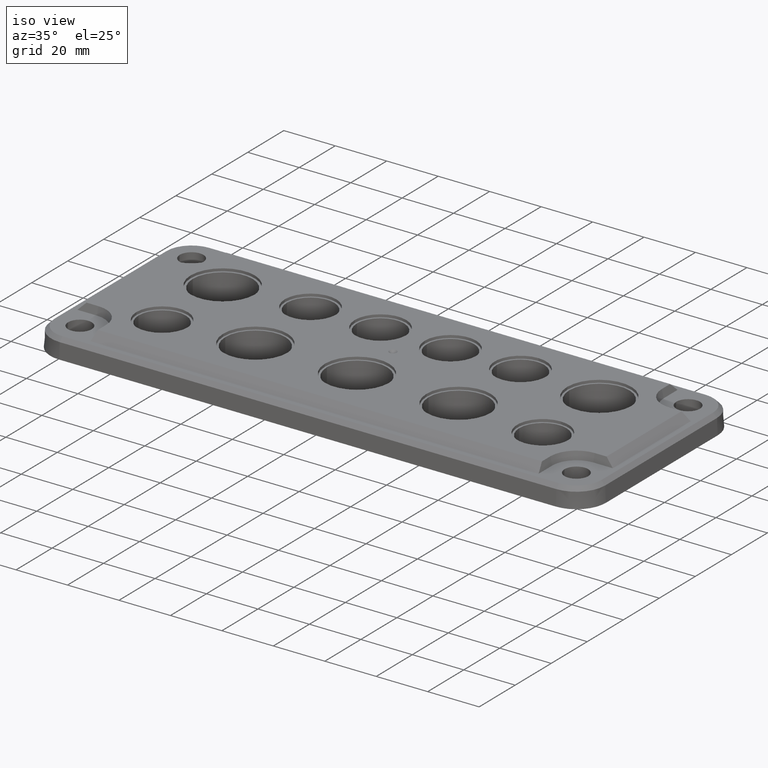
[diagram: clean part render]
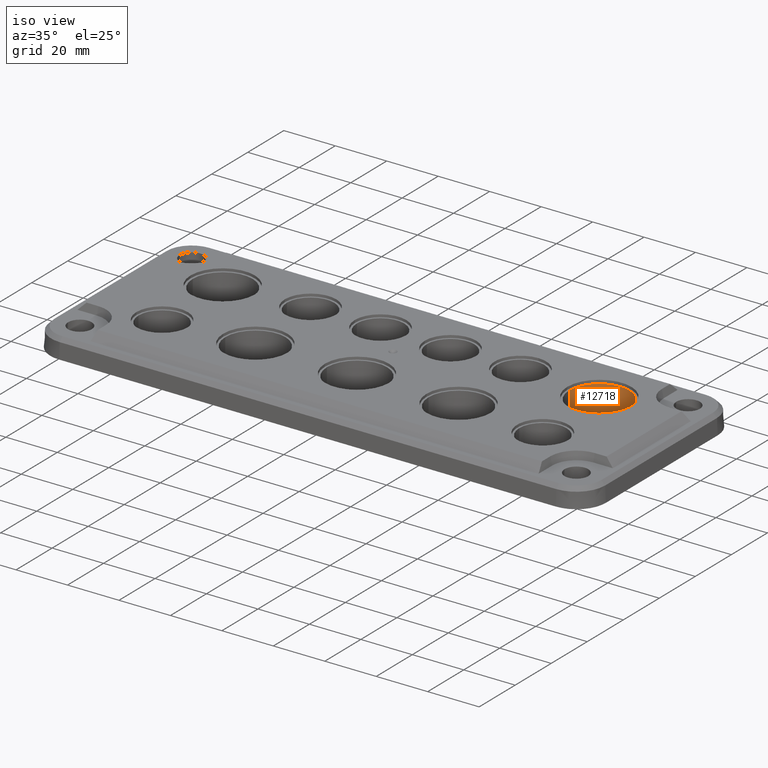
[diagram: same view with one face highlighted and labeled with its STEP entity id]
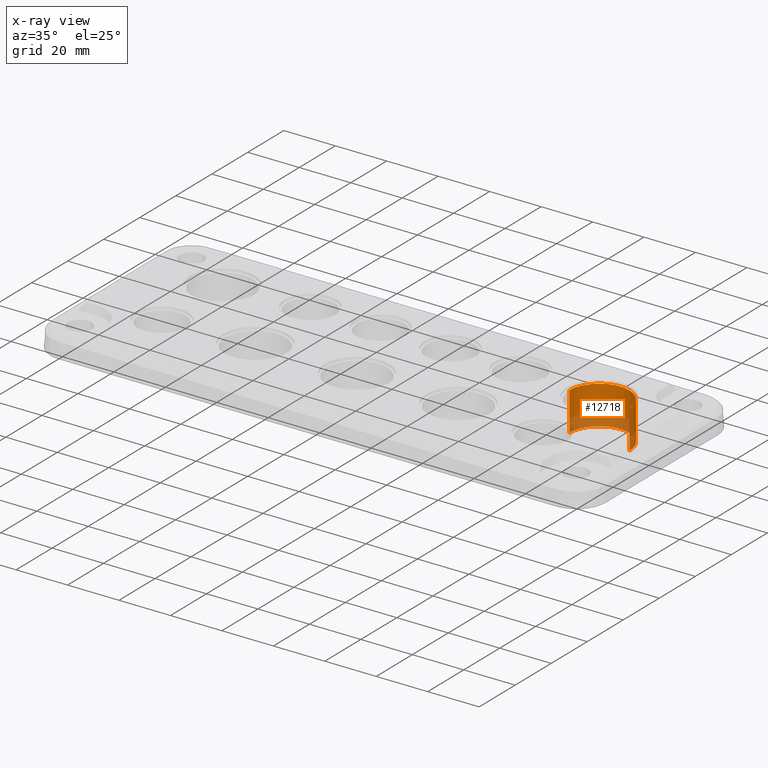
[diagram: x-ray of the same camera — body ghosted, the highlighted face saturated]
A machine part, iso view. The second image highlights one B-rep face of the part: STEP entity #12718.
The next image is the same camera in x-ray: the body ghosted, the highlighted face saturated — about 32% of this face is hidden behind the body in this view.
In plain terms, the highlighted cylindrical surface (partial cylindrical patch) has radius 11.688 mm, axis along (0, 0, -1).
Its self-contained STEP definition (entity closure, byte-faithful):
#65 = CARTESIAN_POINT ( 'NONE',  ( 295.7964390995756500, 158.1637859071908600, -5.500000000000000000 ) ) ;
#187 = CARTESIAN_POINT ( 'NONE',  ( 296.3616008050320300, 156.1210433375711900, -5.499999999999999100 ) ) ;
#396 = CARTESIAN_POINT ( 'NONE',  ( 275.1318744914094600, 160.5165856533336100, -5.500000000000001800 ) ) ;
#456 = CARTESIAN_POINT ( 'NONE',  ( 277.7897944119088200, 163.3796821272220500, -5.500000000000001800 ) ) ;
#515 = CARTESIAN_POINT ( 'NONE',  ( 280.6466042576354900, 164.9401733175892300, -5.500000000000000900 ) ) ;
#577 = CARTESIAN_POINT ( 'NONE',  ( 275.4784661191523600, 161.0136382612275800, -5.500000000000000000 ) ) ;
#704 = ORIENTED_EDGE ( 'NONE', *, *, #14976, .F. ) ;
#1123 = CARTESIAN_POINT ( 'NONE',  ( 287.1503089167737200, 165.4999018445356900, -5.500000000000000000 ) ) ;
#1184 = CARTESIAN_POINT ( 'NONE',  ( 283.3505083241935800, 165.6306798269132200, -5.500000000000000000 ) ) ;
#1462 = CARTESIAN_POINT ( 'NONE',  ( 295.5827235982669100, 158.7075656275619600, -5.500000000000000000 ) ) ;
#1490 = EDGE_CURVE ( 'NONE', #6871, #6144, #3678, .T. ) ;
#1693 = CARTESIAN_POINT ( 'NONE',  ( 296.2846124600797000, 156.5375328542177400, -5.500000000000000900 ) ) ;
#1718 = CARTESIAN_POINT ( 'NONE',  ( 280.8679983533009500, 165.0238211314650700, -5.500000000000000000 ) ) ;
#1782 = CARTESIAN_POINT ( 'NONE',  ( 274.1244439275017200, 158.6599318644763100, -5.500000000000001800 ) ) ;
#1843 = CARTESIAN_POINT ( 'NONE',  ( 273.3853914384921500, 156.2580967653100600, -5.500000000000000900 ) ) ;
#1926 = CARTESIAN_POINT ( 'NONE',  ( 294.7504673803328500, 160.2680357400299700, -5.500000000000000000 ) ) ;
#2211 = DIRECTION ( 'NONE',  ( 0.0000000000000000000, 0.0000000000000000000, -1.000000000000000000 ) ) ;
#3308 = CARTESIAN_POINT ( 'NONE',  ( 289.4824073426988200, 164.7744103615316600, -5.500000000000000000 ) ) ;
#3343 = CARTESIAN_POINT ( 'NONE',  ( 274.5641990822993000, 159.5940293715609100, -5.500000000000000000 ) ) ;
#3400 = CYLINDRICAL_SURFACE ( 'NONE', #9974, 11.68799999999997600 ) ;
#3678 = B_SPLINE_CURVE_WITH_KNOTS ( 'NONE', 3,
 ( #4394, #5720, #7038, #14029, #16651, #8401, #6922, #187, #15406, #1693, #7147, #7091, #16532, #65, #8520, #9681, #1462, #12975, #10226, #14092, #1926, #5829, #11533, #4563, #15584, #5891, #8637, #12844, #10102, #15462, #7208, #7384, #15639, #3308, #16991, #9984, #13443, #10922, #9527, #8019, #16215, #1123, #12172, #12115, #5254, #17630, #5318, #6710, #9409, #1184, #4479, #11514, #8729, #14123, #11568, #7181, #6039, #15670, #1718, #5864, #515, #16797, #15492, #17028, #9955, #8783, #4536, #5926, #456, #7243, #16856, #8608, #577, #15559, #14359, #396, #6108, #3343, #10021, #1782, #12764, #7297, #14178, #10199, #16915, #7359, #4712, #10078, #1843, #5984, #8550, #10135, #11452, #12820 ),
 .UNSPECIFIED., .F., .F.,
 ( 4, 1, 1, 1, 1, 2, 2, 1, 1, 1, 2, 2, 1, 1, 2, 2, 2, 1, 1, 2, 2, 1, 1, 1, 2, 2, 1, 1, 1, 1, 2, 2, 2, 1, 1, 1, 1, 2, 2, 1, 1, 1, 2, 2, 1, 1, 2, 2, 2, 1, 1, 2, 2, 1, 1, 1, 2, 2, 1, 1, 1, 1, 2, 2, 4 ),
 ( 0.0000000000000000000, 0.03125000000005130600, 0.04687500000007718100, 0.05468750000009012200, 0.05859375000009658900, 0.06054687500009982300, 0.06250000000010305600, 0.09375000000012655200, 0.1093750000001400400, 0.1171875000001478800, 0.1210937500001510000, 0.1250000000001541300, 0.1562500000001791100, 0.1718750000001926000, 0.1796875000002004500, 0.1875000000002083100, 0.2500000000002615100, 0.2812500000002904300, 0.2968750000003032000, 0.3046875000003119700, 0.3125000000003207400, 0.3437500000003448400, 0.3593750000003553800, 0.3671875000003622100, 0.3710937500003656000, 0.3750000000003690400, 0.4062500000004014600, 0.4218750000004176700, 0.4296875000004254900, 0.4335937500004272100, 0.4355468750004258300, 0.4375000000004243800, 0.5000000000004293200, 0.5312500000004318800, 0.5468750000004332100, 0.5546875000004362100, 0.5585937500004402000, 0.5605468750004422000, 0.5625000000004442000, 0.5937500000004136700, 0.6093750000003984600, 0.6171875000003909100, 0.6210937500003874700, 0.6250000000003839200, 0.6562500000003387300, 0.6718750000003175200, 0.6796875000003074200, 0.6875000000002974300, 0.7500000000002302600, 0.7812500000001958400, 0.7968750000001786300, 0.8046875000001679800, 0.8125000000001572100, 0.8437500000001155700, 0.8593750000000957000, 0.8671875000000858200, 0.8710937500000800500, 0.8750000000000741600, 0.9062500000000374100, 0.9218750000000207600, 0.9296875000000128800, 0.9335937500000105500, 0.9355468750000089900, 0.9375000000000074400, 1.000000000000000000 ),
 .UNSPECIFIED. ) ;
#4394 = CARTESIAN_POINT ( 'NONE',  ( 296.5486648836394500, 154.0381894054246700, -5.500000000000000000 ) ) ;
#4397 = CARTESIAN_POINT ( 'NONE',  ( 296.5486648836394500, 154.0381894054246500, 10.50000000000000000 ) ) ;
#4479 = CARTESIAN_POINT ( 'NONE',  ( 283.0418874882428200, 165.5844299622261000, -5.500000000000000000 ) ) ;
#4536 = CARTESIAN_POINT ( 'NONE',  ( 278.6308185490464100, 163.9279919021388100, -5.499999999999998200 ) ) ;
#4563 = CARTESIAN_POINT ( 'NONE',  ( 293.6956061769540700, 161.7325236801922300, -5.500000000000000900 ) ) ;
#4604 = ORIENTED_EDGE ( 'NONE', *, *, #15728, .F. ) ;
#4712 = CARTESIAN_POINT ( 'NONE',  ( 273.4320397132722700, 156.4901294254021300, -5.500000000000000000 ) ) ;
#5108 = DIRECTION ( 'NONE',  ( 0.0000000000000000000, 0.0000000000000000000, -1.000000000000000000 ) ) ;
#5254 = CARTESIAN_POINT ( 'NONE',  ( 287.0094055255495400, 165.5269984228819700, -5.500000000000000900 ) ) ;
#5318 = CARTESIAN_POINT ( 'NONE',  ( 285.5752073335907500, 165.7261569832275000, -5.499999999999999100 ) ) ;
#5676 = CARTESIAN_POINT ( 'NONE',  ( 273.1726648836395300, 154.0381894054246500, 10.50000000000000000 ) ) ;
#5720 = CARTESIAN_POINT ( 'NONE',  ( 296.5486324375884800, 154.3957236339630900, -5.500000000000000900 ) ) ;
#5829 = CARTESIAN_POINT ( 'NONE',  ( 294.6986322703891100, 160.3495916437696800, -5.500000000000000000 ) ) ;
#5864 = CARTESIAN_POINT ( 'NONE',  ( 280.7350683819271400, 164.9739636213671200, -5.499999999999998200 ) ) ;
#5891 = CARTESIAN_POINT ( 'NONE',  ( 292.3927268040746400, 162.9916594592831400, -5.500000000000000000 ) ) ;
#5926 = CARTESIAN_POINT ( 'NONE',  ( 278.5492626453445300, 163.8761567922140300, -5.500000000000000000 ) ) ;
#5980 = VERTEX_POINT ( 'NONE', #9317 ) ;
#5984 = CARTESIAN_POINT ( 'NONE',  ( 273.3764883793698500, 156.2115653720329400, -5.500000000000000000 ) ) ;
#6039 = CARTESIAN_POINT ( 'NONE',  ( 281.8099636148047000, 165.3322543692745200, -5.500000000000000900 ) ) ;
#6108 = CARTESIAN_POINT ( 'NONE',  ( 274.8618087769417000, 160.1035424016167500, -5.499999999999999100 ) ) ;
#6144 = VERTEX_POINT ( 'NONE', #9801 ) ;
#6260 = CARTESIAN_POINT ( 'NONE',  ( 284.8606648836394600, 154.0381894054246500, 9.500000000000000000 ) ) ;
#6495 = EDGE_LOOP ( 'NONE', ( #704, #4604, #17211, #8730 ) ) ;
#6706 = CARTESIAN_POINT ( 'NONE',  ( 296.5486648836394500, 154.0381894054246700, -5.500000000000000000 ) ) ;
#6710 = CARTESIAN_POINT ( 'NONE',  ( 284.5033936586638700, 165.7262056165232000, -5.500000000000000900 ) ) ;
#6871 = VERTEX_POINT ( 'NONE', #6706 ) ;
#6922 = CARTESIAN_POINT ( 'NONE',  ( 296.3694732169173000, 156.0770951236573000, -5.499999999999999100 ) ) ;
#7038 = CARTESIAN_POINT ( 'NONE',  ( 296.5242172463067000, 154.9297223249411100, -5.500000000000000000 ) ) ;
#7091 = CARTESIAN_POINT ( 'NONE',  ( 295.9568351809083400, 157.7190495081552500, -5.499999999999999100 ) ) ;
#7147 = CARTESIAN_POINT ( 'NONE',  ( 296.1547298474657200, 157.0888906744635000, -5.500000000000000000 ) ) ;
#7181 = CARTESIAN_POINT ( 'NONE',  ( 282.3613214349630300, 165.4621369818783300, -5.500000000000000900 ) ) ;
#7197 = LINE ( 'NONE', #5676, #13665 ) ;
#7208 = CARTESIAN_POINT ( 'NONE',  ( 290.9260178798416500, 164.0370455120822200, -5.500000000000000900 ) ) ;
#7243 = CARTESIAN_POINT ( 'NONE',  ( 277.1663306088306600, 162.8731306987809000, -5.500000000000000900 ) ) ;
#7297 = CARTESIAN_POINT ( 'NONE',  ( 274.0299419756810300, 158.4321853863743600, -5.500000000000000000 ) ) ;
#7359 = CARTESIAN_POINT ( 'NONE',  ( 273.5039939362778800, 156.8130297305658300, -5.500000000000000000 ) ) ;
#7384 = CARTESIAN_POINT ( 'NONE',  ( 290.4165048497935100, 164.3346552066942900, -5.500000000000000000 ) ) ;
#8019 = CARTESIAN_POINT ( 'NONE',  ( 287.6355052090089000, 165.3948603527415700, -5.499999999999999100 ) ) ;
#8401 = CARTESIAN_POINT ( 'NONE',  ( 296.3810914712904600, 156.0111548133189400, -5.500000000000000900 ) ) ;
#8520 = CARTESIAN_POINT ( 'NONE',  ( 295.7626487958007700, 158.2522500314570100, -5.500000000000000000 ) ) ;
#8534 = FACE_OUTER_BOUND ( 'NONE', #6495, .T. ) ;
#8550 = CARTESIAN_POINT ( 'NONE',  ( 273.3718548514905300, 156.1869245654564500, -5.499999999999997300 ) ) ;
#8608 = CARTESIAN_POINT ( 'NONE',  ( 275.9071948298172300, 161.5702513258232500, -5.500000000000000000 ) ) ;
#8637 = CARTESIAN_POINT ( 'NONE',  ( 291.8361137394697400, 163.4203881699391700, -5.500000000000000000 ) ) ;
#8729 = CARTESIAN_POINT ( 'NONE',  ( 282.8218223479034400, 165.5470094278224700, -5.499999999999999100 ) ) ;
#8730 = ORIENTED_EDGE ( 'NONE', *, *, #1490, .F. ) ;
#8783 = CARTESIAN_POINT ( 'NONE',  ( 278.7984631699612800, 164.0316671068728700, -5.499999999999999100 ) ) ;
#8925 = CARTESIAN_POINT ( 'NONE',  ( 284.8606648836394600, 154.0381894054246500, 10.50000000000000000 ) ) ;
#9006 = DIRECTION ( 'NONE',  ( -1.000000000000000000, 0.0000000000000000000, 0.0000000000000000000 ) ) ;
#9317 = CARTESIAN_POINT ( 'NONE',  ( 273.1726648836395300, 154.0381894054246500, 9.500000000000000000 ) ) ;
#9409 = CARTESIAN_POINT ( 'NONE',  ( 283.9695922203580400, 165.7018269181038200, -5.500000000000000000 ) ) ;
#9527 = CARTESIAN_POINT ( 'NONE',  ( 288.2745391447497800, 165.2278331647560500, -5.500000000000000000 ) ) ;
#9681 = CARTESIAN_POINT ( 'NONE',  ( 295.7461939149807800, 158.2945947136866200, -5.499999999999999100 ) ) ;
#9801 = CARTESIAN_POINT ( 'NONE',  ( 273.1726648836394700, 154.0381894054246700, -5.500000000000000000 ) ) ;
#9955 = CARTESIAN_POINT ( 'NONE',  ( 279.0516334592758200, 164.1838561571173300, -5.500000000000000000 ) ) ;
#9974 = AXIS2_PLACEMENT_3D ( 'NONE', #8925, #2211, #10334 ) ;
#9984 = CARTESIAN_POINT ( 'NONE',  ( 289.2546608645917000, 164.8689123133733900, -5.500000000000000900 ) ) ;
#10021 = CARTESIAN_POINT ( 'NONE',  ( 274.2633088066411900, 158.9753405291698100, -5.500000000000000000 ) ) ;
#10078 = CARTESIAN_POINT ( 'NONE',  ( 273.3989524445146300, 156.3278334384876300, -5.500000000000000000 ) ) ;
#10102 = CARTESIAN_POINT ( 'NONE',  ( 291.4245394328870000, 163.7095477139506300, -5.500000000000000000 ) ) ;
#10135 = CARTESIAN_POINT ( 'NONE',  ( 273.2377720926552900, 155.4625414519787200, -5.499999999999999100 ) ) ;
#10199 = CARTESIAN_POINT ( 'NONE',  ( 273.8538194144397800, 157.9882070259511400, -5.499999999999999100 ) ) ;
#10226 = CARTESIAN_POINT ( 'NONE',  ( 295.0063316352738500, 159.8472208298227900, -5.500000000000000000 ) ) ;
#10334 = DIRECTION ( 'NONE',  ( -1.000000000000000000, 0.0000000000000000000, 0.0000000000000000000 ) ) ;
#10659 = CIRCLE ( 'NONE', #16415, 11.68799999999997600 ) ;
#10922 = CARTESIAN_POINT ( 'NONE',  ( 288.8106825043397500, 165.0450348745905300, -5.499999999999999100 ) ) ;
#11362 = DIRECTION ( 'NONE',  ( 0.0000000000000000000, 0.0000000000000000000, -1.000000000000000000 ) ) ;
#11452 = CARTESIAN_POINT ( 'NONE',  ( 273.1727298080063500, 154.7536133997810200, -5.499999999999999100 ) ) ;
#11514 = CARTESIAN_POINT ( 'NONE',  ( 282.8878073483002100, 165.5586359501095000, -5.499999999999999100 ) ) ;
#11533 = CARTESIAN_POINT ( 'NONE',  ( 294.2021576057550800, 161.1090598767538900, -5.499999999999999100 ) ) ;
#11568 = CARTESIAN_POINT ( 'NONE',  ( 282.7571656828016000, 165.5353703995775200, -5.500000000000000000 ) ) ;
#12115 = CARTESIAN_POINT ( 'NONE',  ( 287.0340408502692100, 165.5223659096900800, -5.500000000000000000 ) ) ;
#12167 = VECTOR ( 'NONE', #11362, 1000.000000000000000 ) ;
#12172 = CARTESIAN_POINT ( 'NONE',  ( 287.0805722435665100, 165.5134628505637400, -5.499999999999999100 ) ) ;
#12718 = ADVANCED_FACE ( 'NONE', ( #8534 ), #3400, .F. ) ;
#12764 = CARTESIAN_POINT ( 'NONE',  ( 274.0674118918753400, 158.5234572417150800, -5.499999999999998200 ) ) ;
#12820 = CARTESIAN_POINT ( 'NONE',  ( 273.1726648836394700, 154.0381894054246700, -5.500000000000000000 ) ) ;
#12844 = CARTESIAN_POINT ( 'NONE',  ( 291.5901569352484400, 163.5950892080623500, -5.500000000000000000 ) ) ;
#12975 = CARTESIAN_POINT ( 'NONE',  ( 295.3381731211624100, 159.2445666491713600, -5.500000000000000900 ) ) ;
#13025 = LINE ( 'NONE', #4397, #12167 ) ;
#13212 = CARTESIAN_POINT ( 'NONE',  ( 296.5486648836394500, 154.0381894054246500, 9.500000000000000000 ) ) ;
#13443 = CARTESIAN_POINT ( 'NONE',  ( 289.2069900170811300, 164.8881200924489600, -5.500000000000000900 ) ) ;
#13665 = VECTOR ( 'NONE', #14050, 1000.000000000000000 ) ;
#14029 = CARTESIAN_POINT ( 'NONE',  ( 296.4530914426191500, 155.5486911570468200, -5.500000000000000900 ) ) ;
#14050 = DIRECTION ( 'NONE',  ( 0.0000000000000000000, 0.0000000000000000000, -1.000000000000000000 ) ) ;
#14092 = CARTESIAN_POINT ( 'NONE',  ( 294.8541425850501700, 160.1003911191250200, -5.500000000000000000 ) ) ;
#14123 = CARTESIAN_POINT ( 'NONE',  ( 282.7778433132593800, 165.5391313139276700, -5.500000000000000000 ) ) ;
#14178 = CARTESIAN_POINT ( 'NONE',  ( 274.0107341966196900, 158.3845145388880300, -5.500000000000001800 ) ) ;
#14359 = CARTESIAN_POINT ( 'NONE',  ( 275.1893065751231700, 160.6020639546625000, -5.500000000000000000 ) ) ;
#14976 = EDGE_CURVE ( 'NONE', #15301, #6871, #13025, .T. ) ;
#15301 = VERTEX_POINT ( 'NONE', #13212 ) ;
#15406 = CARTESIAN_POINT ( 'NONE',  ( 296.3578458777933000, 156.1416886062552600, -5.500000000000000000 ) ) ;
#15462 = CARTESIAN_POINT ( 'NONE',  ( 291.3390611315458000, 163.7669797976647600, -5.499999999999998200 ) ) ;
#15492 = CARTESIAN_POINT ( 'NONE',  ( 280.1912886615284000, 164.7602481200965500, -5.499999999999999100 ) ) ;
#15515 = EDGE_CURVE ( 'NONE', #5980, #6144, #7197, .T. ) ;
#15559 = CARTESIAN_POINT ( 'NONE',  ( 275.3037650810192100, 160.7676814570159500, -5.500000000000000000 ) ) ;
#15584 = CARTESIAN_POINT ( 'NONE',  ( 292.8401903247448100, 162.5880183558034600, -5.500000000000000000 ) ) ;
#15639 = CARTESIAN_POINT ( 'NONE',  ( 289.7978160073980100, 164.6355454823701100, -5.500000000000000000 ) ) ;
#15670 = CARTESIAN_POINT ( 'NONE',  ( 281.1798047810619900, 165.1343597027113800, -5.500000000000000900 ) ) ;
#15728 = EDGE_CURVE ( 'NONE', #5980, #15301, #10659, .T. ) ;
#16215 = CARTESIAN_POINT ( 'NONE',  ( 287.3126049037501800, 165.4668145757657400, -5.500000000000000000 ) ) ;
#16415 = AXIS2_PLACEMENT_3D ( 'NONE', #6260, #5108, #9006 ) ;
#16532 = CARTESIAN_POINT ( 'NONE',  ( 295.8462966096695900, 158.0308559358524000, -5.499999999999998200 ) ) ;
#16651 = CARTESIAN_POINT ( 'NONE',  ( 296.4068681873106900, 155.8571681629241000, -5.500000000000000900 ) ) ;
#16797 = CARTESIAN_POINT ( 'NONE',  ( 280.6042595753744400, 164.9237184367607400, -5.500000000000000900 ) ) ;
#16856 = CARTESIAN_POINT ( 'NONE',  ( 276.3108359332815100, 162.0177148465091400, -5.500000000000000900 ) ) ;
#16915 = CARTESIAN_POINT ( 'NONE',  ( 273.6710211242485700, 157.4520636662308600, -5.500000000000001800 ) ) ;
#16991 = CARTESIAN_POINT ( 'NONE',  ( 289.3459327199345200, 164.8314423971702900, -5.499999999999999100 ) ) ;
#17028 = CARTESIAN_POINT ( 'NONE',  ( 279.6542876399388400, 164.5156976430253600, -5.500000000000000900 ) ) ;
#17211 = ORIENTED_EDGE ( 'NONE', *, *, #15515, .T. ) ;
#17630 = CARTESIAN_POINT ( 'NONE',  ( 286.2848415100935400, 165.6611146665382300, -5.500000000000000000 ) ) ;